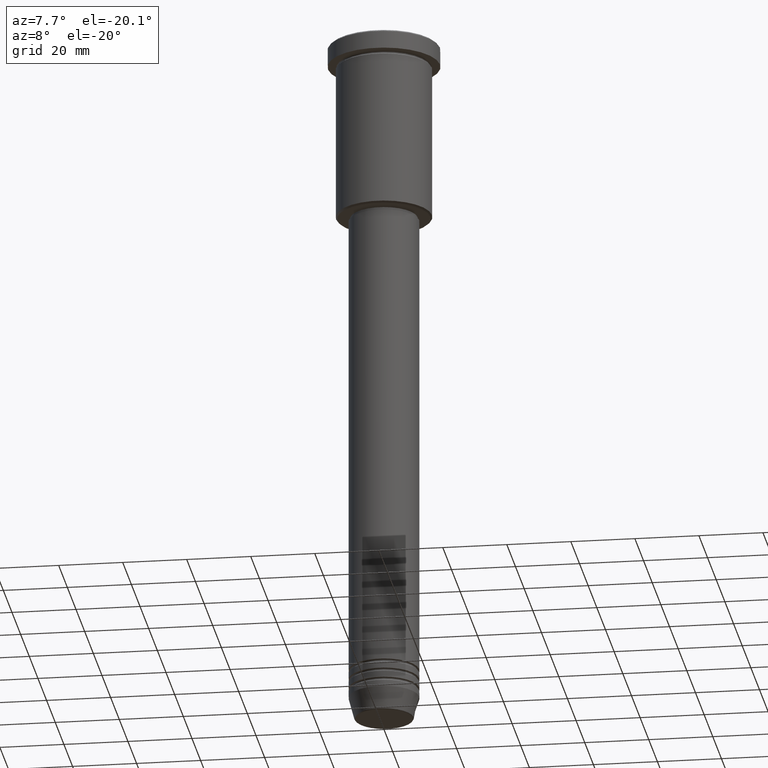
[diagram: clean part render]
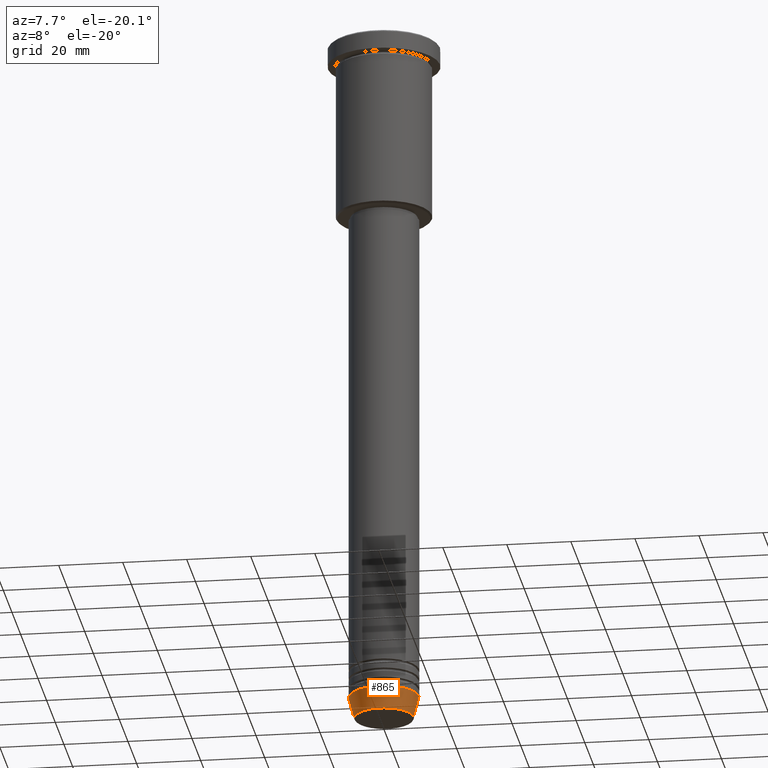
[diagram: same view with one face highlighted and labeled with its STEP entity id]
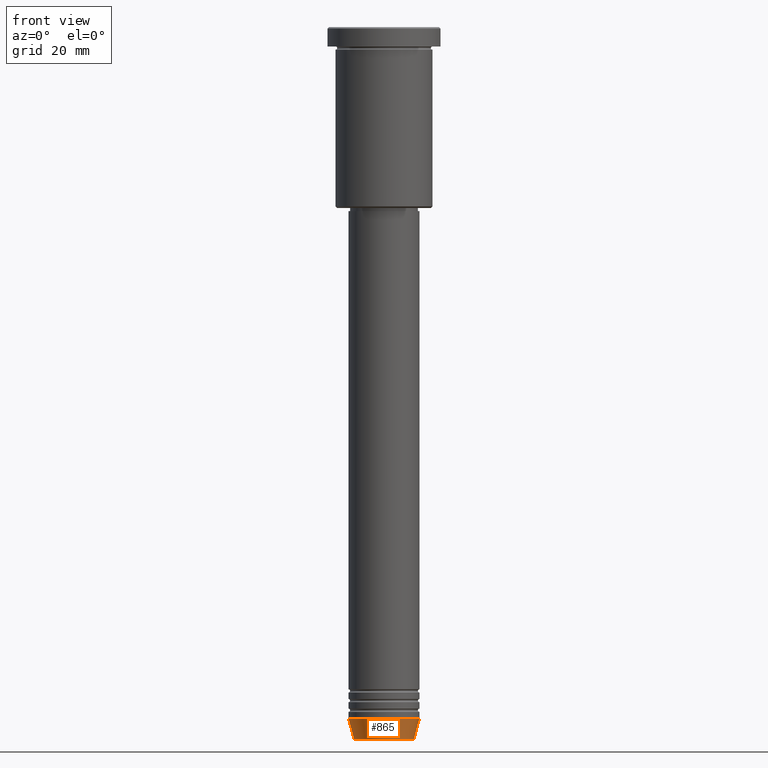
[diagram: same view with one face highlighted and labeled with its STEP entity id]
A machine part, auxiliary view. The second image highlights one B-rep face of the part: STEP entity #865.
A second angle (front view) of the same face is appended — the face is thin or edge-on in the first view.
In plain terms, the highlighted conical surface has half-angle 15 deg.
Its self-contained STEP definition (entity closure, byte-faithful):
#27 = AXIS2_PLACEMENT_3D ( 'NONE', #879, #796, #708 ) ;
#39 = CARTESIAN_POINT ( 'NONE',  ( 9.223655072137189492, 0.000000000000000000, -220.6294095225512706 ) ) ;
#49 = VECTOR ( 'NONE', #460, 1000.000000000000000 ) ;
#56 = VERTEX_POINT ( 'NONE', #39 ) ;
#90 = VERTEX_POINT ( 'NONE', #583 ) ;
#118 = VERTEX_POINT ( 'NONE', #314 ) ;
#207 = CONICAL_SURFACE ( 'NONE', #588, 11.00000000000000000, 0.2617993877991500740 ) ;
#252 = EDGE_CURVE ( 'NONE', #56, #118, #630, .T. ) ;
#258 = EDGE_CURVE ( 'NONE', #90, #118, #1114, .T. ) ;
#259 = CARTESIAN_POINT ( 'NONE',  ( 11.00000000000000000, 0.000000000000000000, -214.0000000000000284 ) ) ;
#292 = LINE ( 'NONE', #1083, #49 ) ;
#306 = ORIENTED_EDGE ( 'NONE', *, *, #1146, .T. ) ;
#314 = CARTESIAN_POINT ( 'NONE',  ( 11.00000000000000000, 0.000000000000000000, -214.0000000000000284 ) ) ;
#340 = EDGE_LOOP ( 'NONE', ( #826, #306, #398, #1021 ) ) ;
#398 = ORIENTED_EDGE ( 'NONE', *, *, #252, .T. ) ;
#437 = DIRECTION ( 'NONE',  ( -0.000000000000000000, -0.000000000000000000, 1.000000000000000000 ) ) ;
#460 = DIRECTION ( 'NONE',  ( -0.2588190451025213501, 3.169619151431772337E-17, 0.9659258262890680902 ) ) ;
#473 = CARTESIAN_POINT ( 'NONE',  ( -9.223655072137189492, 1.238341722557647202E-15, -220.6294095225512706 ) ) ;
#583 = CARTESIAN_POINT ( 'NONE',  ( -11.00000000000000000, 1.347111479062088405E-15, -214.0000000000000284 ) ) ;
#588 = AXIS2_PLACEMENT_3D ( 'NONE', #1177, #643, #1017 ) ;
#630 = LINE ( 'NONE', #259, #1092 ) ;
#643 = DIRECTION ( 'NONE',  ( -0.000000000000000000, -0.000000000000000000, 1.000000000000000000 ) ) ;
#708 = DIRECTION ( 'NONE',  ( 1.000000000000000000, 0.000000000000000000, 0.000000000000000000 ) ) ;
#738 = AXIS2_PLACEMENT_3D ( 'NONE', #1063, #437, #1165 ) ;
#743 = CIRCLE ( 'NONE', #27, 9.223655072137189492 ) ;
#796 = DIRECTION ( 'NONE',  ( -0.000000000000000000, -0.000000000000000000, 1.000000000000000000 ) ) ;
#826 = ORIENTED_EDGE ( 'NONE', *, *, #853, .F. ) ;
#853 = EDGE_CURVE ( 'NONE', #860, #90, #292, .T. ) ;
#860 = VERTEX_POINT ( 'NONE', #473 ) ;
#865 = ADVANCED_FACE ( 'NONE', ( #1182 ), #207, .T. ) ;
#879 = CARTESIAN_POINT ( 'NONE',  ( 0.000000000000000000, 0.000000000000000000, -220.6294095225512706 ) ) ;
#1017 = DIRECTION ( 'NONE',  ( 1.000000000000000000, 0.000000000000000000, 0.000000000000000000 ) ) ;
#1021 = ORIENTED_EDGE ( 'NONE', *, *, #258, .F. ) ;
#1063 = CARTESIAN_POINT ( 'NONE',  ( 0.000000000000000000, 0.000000000000000000, -214.0000000000000284 ) ) ;
#1083 = CARTESIAN_POINT ( 'NONE',  ( -11.00000000000000000, 1.347111479062088405E-15, -214.0000000000000284 ) ) ;
#1092 = VECTOR ( 'NONE', #1162, 1000.000000000000000 ) ;
#1114 = CIRCLE ( 'NONE', #738, 11.00000000000000000 ) ;
#1146 = EDGE_CURVE ( 'NONE', #860, #56, #743, .T. ) ;
#1162 = DIRECTION ( 'NONE',  ( 0.2588190451025213501, 0.000000000000000000, 0.9659258262890680902 ) ) ;
#1165 = DIRECTION ( 'NONE',  ( 1.000000000000000000, 0.000000000000000000, 0.000000000000000000 ) ) ;
#1177 = CARTESIAN_POINT ( 'NONE',  ( 0.000000000000000000, 0.000000000000000000, -214.0000000000000284 ) ) ;
#1182 = FACE_OUTER_BOUND ( 'NONE', #340, .T. ) ;